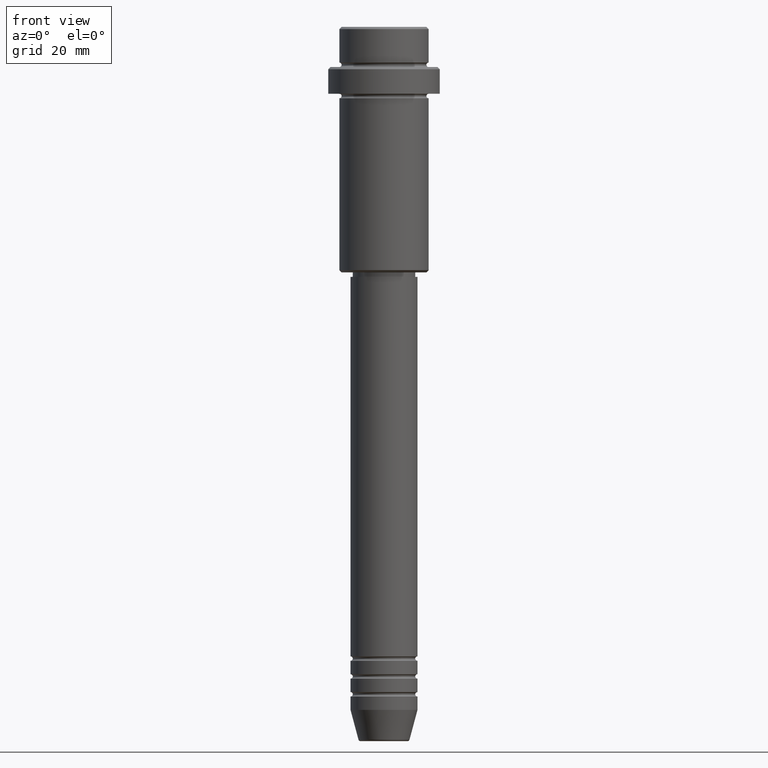
[diagram: clean part render]
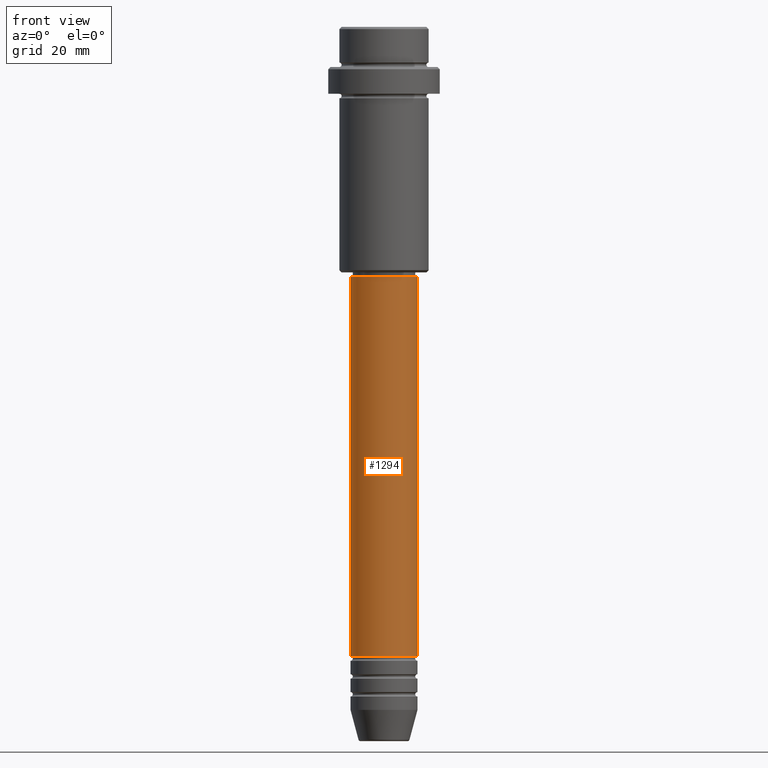
[diagram: same view with one face highlighted and labeled with its STEP entity id]
A machine part, front view. The second image highlights one B-rep face of the part: STEP entity #1294.
In plain terms, the highlighted cylindrical surface (edge-blend (fillet) strip) has radius 7.5 mm, axis along (-0, -0, 1).
Its self-contained STEP definition (entity closure, byte-faithful):
#2 = EDGE_LOOP ( 'NONE', ( #837, #108, #1199, #1166 ) ) ;
#35 = VECTOR ( 'NONE', #913, 1000.000000000000000 ) ;
#41 = FACE_OUTER_BOUND ( 'NONE', #2, .T. ) ;
#104 = VECTOR ( 'NONE', #683, 1000.000000000000000 ) ;
#108 = ORIENTED_EDGE ( 'NONE', *, *, #1017, .T. ) ;
#112 = CARTESIAN_POINT ( 'NONE',  ( 7.500000000000000000, 0.000000000000000000, -55.99999999999999289 ) ) ;
#160 = VERTEX_POINT ( 'NONE', #112 ) ;
#232 = AXIS2_PLACEMENT_3D ( 'NONE', #835, #711, #1149 ) ;
#326 = EDGE_CURVE ( 'NONE', #721, #699, #706, .T. ) ;
#374 = CARTESIAN_POINT ( 'NONE',  ( 0.000000000000000000, 0.000000000000000000, 0.000000000000000000 ) ) ;
#383 = EDGE_CURVE ( 'NONE', #699, #160, #1219, .T. ) ;
#411 = EDGE_CURVE ( 'NONE', #479, #160, #489, .T. ) ;
#466 = CARTESIAN_POINT ( 'NONE',  ( 7.500000000000000000, 0.000000000000000000, 0.000000000000000000 ) ) ;
#479 = VERTEX_POINT ( 'NONE', #729 ) ;
#489 = LINE ( 'NONE', #466, #35 ) ;
#516 = DIRECTION ( 'NONE',  ( -0.000000000000000000, -0.000000000000000000, 1.000000000000000000 ) ) ;
#553 = AXIS2_PLACEMENT_3D ( 'NONE', #374, #516, #1400 ) ;
#644 = CARTESIAN_POINT ( 'NONE',  ( -7.500000000000000000, 9.184850993605147944E-16, -55.99999999999999289 ) ) ;
#683 = DIRECTION ( 'NONE',  ( -0.000000000000000000, -0.000000000000000000, 1.000000000000000000 ) ) ;
#699 = VERTEX_POINT ( 'NONE', #644 ) ;
#706 = LINE ( 'NONE', #1374, #104 ) ;
#711 = DIRECTION ( 'NONE',  ( -0.000000000000000000, -0.000000000000000000, 1.000000000000000000 ) ) ;
#721 = VERTEX_POINT ( 'NONE', #868 ) ;
#729 = CARTESIAN_POINT ( 'NONE',  ( 7.500000000000000000, 0.000000000000000000, -140.9999999999999147 ) ) ;
#802 = DIRECTION ( 'NONE',  ( -0.000000000000000000, -0.000000000000000000, 1.000000000000000000 ) ) ;
#835 = CARTESIAN_POINT ( 'NONE',  ( 0.000000000000000000, 0.000000000000000000, -140.9999999999999147 ) ) ;
#837 = ORIENTED_EDGE ( 'NONE', *, *, #326, .F. ) ;
#868 = CARTESIAN_POINT ( 'NONE',  ( -7.500000000000000000, 9.184850993605147944E-16, -140.9999999999999147 ) ) ;
#875 = AXIS2_PLACEMENT_3D ( 'NONE', #1231, #802, #1346 ) ;
#913 = DIRECTION ( 'NONE',  ( -0.000000000000000000, -0.000000000000000000, 1.000000000000000000 ) ) ;
#1017 = EDGE_CURVE ( 'NONE', #721, #479, #1150, .T. ) ;
#1149 = DIRECTION ( 'NONE',  ( 1.000000000000000000, 0.000000000000000000, 0.000000000000000000 ) ) ;
#1150 = CIRCLE ( 'NONE', #232, 7.500000000000000000 ) ;
#1166 = ORIENTED_EDGE ( 'NONE', *, *, #383, .F. ) ;
#1199 = ORIENTED_EDGE ( 'NONE', *, *, #411, .T. ) ;
#1219 = CIRCLE ( 'NONE', #875, 7.500000000000000000 ) ;
#1231 = CARTESIAN_POINT ( 'NONE',  ( 0.000000000000000000, 0.000000000000000000, -55.99999999999999289 ) ) ;
#1294 = ADVANCED_FACE ( 'NONE', ( #41 ), #1355, .T. ) ;
#1346 = DIRECTION ( 'NONE',  ( 1.000000000000000000, 0.000000000000000000, 0.000000000000000000 ) ) ;
#1355 = CYLINDRICAL_SURFACE ( 'NONE', #553, 7.500000000000000000 ) ;
#1374 = CARTESIAN_POINT ( 'NONE',  ( -7.500000000000000000, 9.184850993605147944E-16, 0.000000000000000000 ) ) ;
#1400 = DIRECTION ( 'NONE',  ( 1.000000000000000000, 0.000000000000000000, 0.000000000000000000 ) ) ;